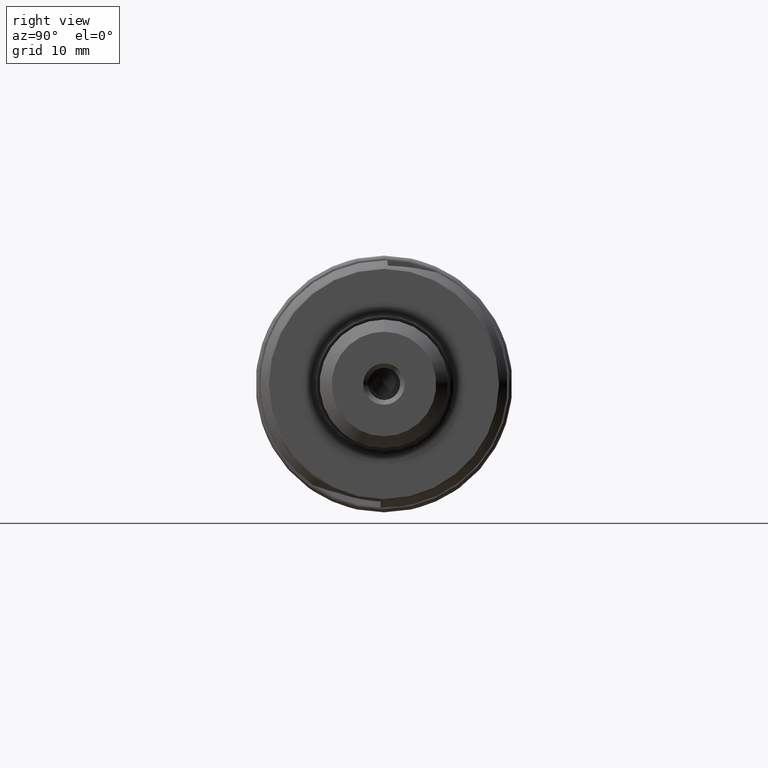
[diagram: clean part render]
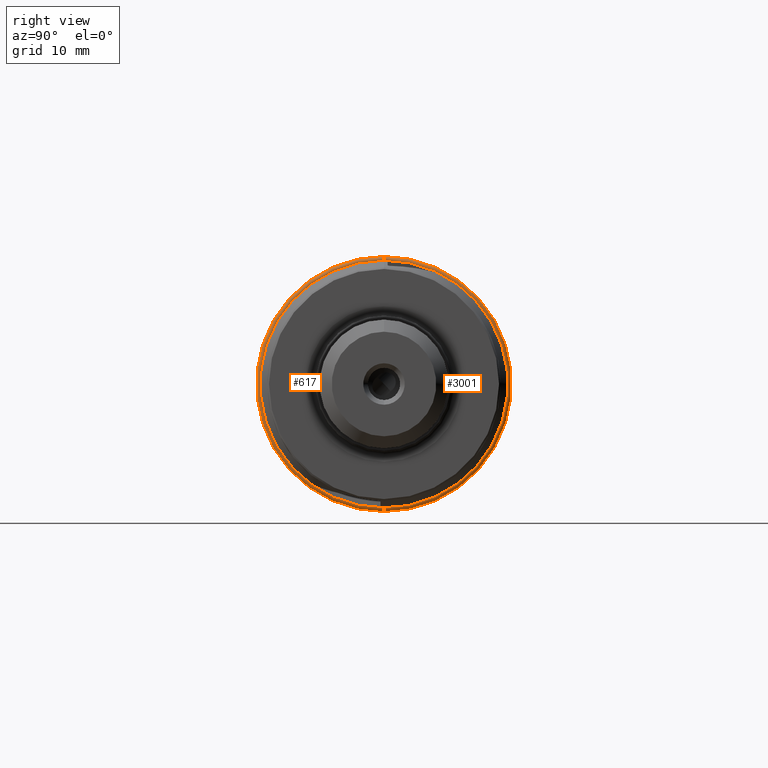
[diagram: same view with one multi-face feature highlighted, each face labeled with its STEP entity id]
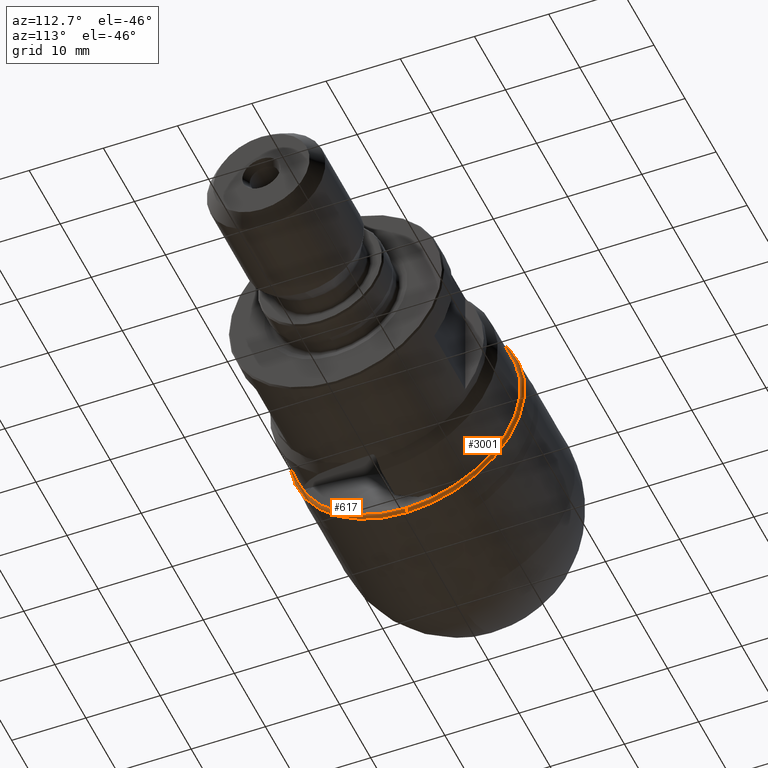
[diagram: same view with one multi-face feature highlighted, each face labeled with its STEP entity id]
A machine part, right view. The highlighted faces form ONE feature: a constant-radius fillet chain: 2 tangent blend faces with common blend radius 0.3963 mm. The faces share edges in the B-rep.
A second angle (auxiliary view) of the same feature is appended — it is thin or edge-on in the first view.
Their STEP definitions:
[1] entity #617 (Torus):
#15 = CIRCLE ( 'NONE', #485, 15.85229918174536579 ) ;
#75 = AXIS2_PLACEMENT_3D ( 'NONE', #4159, #4837, #2187 ) ;
#379 = CARTESIAN_POINT ( 'NONE',  ( 26.03898982724205169, 0.0000000000000000000, 15.85229918174536579 ) ) ;
#485 = AXIS2_PLACEMENT_3D ( 'NONE', #789, #3819, #3154 ) ;
#505 = AXIS2_PLACEMENT_3D ( 'NONE', #4294, #3584, #4318 ) ;
#546 = DIRECTION ( 'NONE',  ( -0.0000000000000000000, 1.000000000000000000, 1.224646799147353207E-16 ) ) ;
#555 = EDGE_CURVE ( 'NONE', #3402, #947, #3018, .T. ) ;
#617 = ADVANCED_FACE ( 'NONE', ( #3256 ), #4126, .T. ) ;
#618 = CARTESIAN_POINT ( 'NONE',  ( 26.02809046410044758, 1.892829962877463278E-15, -15.45612958932587944 ) ) ;
#789 = CARTESIAN_POINT ( 'NONE',  ( 26.03898982724205169, 0.0000000000000000000, 0.0000000000000000000 ) ) ;
#947 = VERTEX_POINT ( 'NONE', #3733 ) ;
#1425 = ORIENTED_EDGE ( 'NONE', *, *, #3067, .F. ) ;
#1487 = DIRECTION ( 'NONE',  ( 0.0000000000000000000, 0.0000000000000000000, -1.000000000000000000 ) ) ;
#1592 = ORIENTED_EDGE ( 'NONE', *, *, #4168, .T. ) ;
#1955 = VERTEX_POINT ( 'NONE', #379 ) ;
#2187 = DIRECTION ( 'NONE',  ( 0.0000000000000000000, 0.0000000000000000000, 1.000000000000000000 ) ) ;
#2449 = EDGE_CURVE ( 'NONE', #4093, #1955, #3582, .T. ) ;
#2600 = EDGE_LOOP ( 'NONE', ( #3604, #1592, #4545, #1425 ) ) ;
#2682 = AXIS2_PLACEMENT_3D ( 'NONE', #2976, #3026, #1487 ) ;
#2889 = CIRCLE ( 'NONE', #505, 15.39677338701797638 ) ;
#2976 = CARTESIAN_POINT ( 'NONE',  ( 26.02809046410044758, 0.0000000000000000000, 15.45612958932587944 ) ) ;
#3018 = CIRCLE ( 'NONE', #3812, 0.3963194949465845829 ) ;
#3026 = DIRECTION ( 'NONE',  ( 0.0000000000000000000, -1.000000000000000000, 0.0000000000000000000 ) ) ;
#3067 = EDGE_CURVE ( 'NONE', #947, #1955, #15, .T. ) ;
#3154 = DIRECTION ( 'NONE',  ( 0.0000000000000000000, 0.0000000000000000000, 1.000000000000000000 ) ) ;
#3256 = FACE_OUTER_BOUND ( 'NONE', #2600, .T. ) ;
#3402 = VERTEX_POINT ( 'NONE', #3607 ) ;
#3502 = CARTESIAN_POINT ( 'NONE',  ( 26.41993990370997025, 0.0000000000000000000, 15.39677338701794973 ) ) ;
#3582 = CIRCLE ( 'NONE', #2682, 0.3963194949465845829 ) ;
#3584 = DIRECTION ( 'NONE',  ( -1.000000000000000000, -0.0000000000000000000, -0.0000000000000000000 ) ) ;
#3604 = ORIENTED_EDGE ( 'NONE', *, *, #555, .F. ) ;
#3607 = CARTESIAN_POINT ( 'NONE',  ( 26.41993990370997025, 1.885560924560868396E-15, -15.39677338701794973 ) ) ;
#3733 = CARTESIAN_POINT ( 'NONE',  ( 26.03898982724205169, 1.942498187726729906E-15, -15.85229918174536579 ) ) ;
#3812 = AXIS2_PLACEMENT_3D ( 'NONE', #618, #546, #4051 ) ;
#3819 = DIRECTION ( 'NONE',  ( -1.000000000000000000, -0.0000000000000000000, -0.0000000000000000000 ) ) ;
#4051 = DIRECTION ( 'NONE',  ( 0.0000000000000000000, -1.224646799147350495E-16, 1.000000000000000000 ) ) ;
#4093 = VERTEX_POINT ( 'NONE', #3502 ) ;
#4126 = TOROIDAL_SURFACE ( 'NONE', #75, 15.45612958932587944, 0.3963194949465839168 ) ;
#4159 = CARTESIAN_POINT ( 'NONE',  ( 26.02809046410044758, 0.0000000000000000000, 0.0000000000000000000 ) ) ;
#4168 = EDGE_CURVE ( 'NONE', #3402, #4093, #2889, .T. ) ;
#4294 = CARTESIAN_POINT ( 'NONE',  ( 26.41993990370997025, 0.0000000000000000000, 0.0000000000000000000 ) ) ;
#4318 = DIRECTION ( 'NONE',  ( 0.0000000000000000000, 0.0000000000000000000, 1.000000000000000000 ) ) ;
#4545 = ORIENTED_EDGE ( 'NONE', *, *, #2449, .T. ) ;
#4837 = DIRECTION ( 'NONE',  ( -1.000000000000000000, -0.0000000000000000000, -0.0000000000000000000 ) ) ;
[2] entity #3001 (Torus):
#379 = CARTESIAN_POINT ( 'NONE',  ( 26.03898982724205169, 0.0000000000000000000, 15.85229918174536579 ) ) ;
#546 = DIRECTION ( 'NONE',  ( -0.0000000000000000000, 1.000000000000000000, 1.224646799147353207E-16 ) ) ;
#555 = EDGE_CURVE ( 'NONE', #3402, #947, #3018, .T. ) ;
#618 = CARTESIAN_POINT ( 'NONE',  ( 26.02809046410044758, 1.892829962877463278E-15, -15.45612958932587944 ) ) ;
#662 = EDGE_CURVE ( 'NONE', #1955, #947, #4761, .T. ) ;
#892 = DIRECTION ( 'NONE',  ( 0.0000000000000000000, 0.0000000000000000000, 1.000000000000000000 ) ) ;
#947 = VERTEX_POINT ( 'NONE', #3733 ) ;
#998 = AXIS2_PLACEMENT_3D ( 'NONE', #1282, #4293, #892 ) ;
#1040 = DIRECTION ( 'NONE',  ( -1.000000000000000000, -0.0000000000000000000, -0.0000000000000000000 ) ) ;
#1088 = DIRECTION ( 'NONE',  ( 0.0000000000000000000, 0.0000000000000000000, 1.000000000000000000 ) ) ;
#1100 = AXIS2_PLACEMENT_3D ( 'NONE', #4233, #1040, #2552 ) ;
#1204 = TOROIDAL_SURFACE ( 'NONE', #1843, 15.45612958932587944, 0.3963194949465839168 ) ;
#1282 = CARTESIAN_POINT ( 'NONE',  ( 26.41993990370997025, 0.0000000000000000000, 0.0000000000000000000 ) ) ;
#1412 = ORIENTED_EDGE ( 'NONE', *, *, #4765, .T. ) ;
#1485 = DIRECTION ( 'NONE',  ( -1.000000000000000000, -0.0000000000000000000, -0.0000000000000000000 ) ) ;
#1487 = DIRECTION ( 'NONE',  ( 0.0000000000000000000, 0.0000000000000000000, -1.000000000000000000 ) ) ;
#1843 = AXIS2_PLACEMENT_3D ( 'NONE', #4816, #1485, #1088 ) ;
#1955 = VERTEX_POINT ( 'NONE', #379 ) ;
#2099 = ORIENTED_EDGE ( 'NONE', *, *, #2449, .F. ) ;
#2215 = ORIENTED_EDGE ( 'NONE', *, *, #662, .F. ) ;
#2449 = EDGE_CURVE ( 'NONE', #4093, #1955, #3582, .T. ) ;
#2552 = DIRECTION ( 'NONE',  ( 0.0000000000000000000, 0.0000000000000000000, 1.000000000000000000 ) ) ;
#2682 = AXIS2_PLACEMENT_3D ( 'NONE', #2976, #3026, #1487 ) ;
#2976 = CARTESIAN_POINT ( 'NONE',  ( 26.02809046410044758, 0.0000000000000000000, 15.45612958932587944 ) ) ;
#3001 = ADVANCED_FACE ( 'NONE', ( #3301 ), #1204, .T. ) ;
#3018 = CIRCLE ( 'NONE', #3812, 0.3963194949465845829 ) ;
#3026 = DIRECTION ( 'NONE',  ( 0.0000000000000000000, -1.000000000000000000, 0.0000000000000000000 ) ) ;
#3301 = FACE_OUTER_BOUND ( 'NONE', #4858, .T. ) ;
#3402 = VERTEX_POINT ( 'NONE', #3607 ) ;
#3502 = CARTESIAN_POINT ( 'NONE',  ( 26.41993990370997025, 0.0000000000000000000, 15.39677338701794973 ) ) ;
#3582 = CIRCLE ( 'NONE', #2682, 0.3963194949465845829 ) ;
#3607 = CARTESIAN_POINT ( 'NONE',  ( 26.41993990370997025, 1.885560924560868396E-15, -15.39677338701794973 ) ) ;
#3733 = CARTESIAN_POINT ( 'NONE',  ( 26.03898982724205169, 1.942498187726729906E-15, -15.85229918174536579 ) ) ;
#3812 = AXIS2_PLACEMENT_3D ( 'NONE', #618, #546, #4051 ) ;
#3830 = ORIENTED_EDGE ( 'NONE', *, *, #555, .T. ) ;
#4016 = CIRCLE ( 'NONE', #998, 15.39677338701797638 ) ;
#4051 = DIRECTION ( 'NONE',  ( 0.0000000000000000000, -1.224646799147350495E-16, 1.000000000000000000 ) ) ;
#4093 = VERTEX_POINT ( 'NONE', #3502 ) ;
#4233 = CARTESIAN_POINT ( 'NONE',  ( 26.03898982724205169, 0.0000000000000000000, 0.0000000000000000000 ) ) ;
#4293 = DIRECTION ( 'NONE',  ( -1.000000000000000000, -0.0000000000000000000, -0.0000000000000000000 ) ) ;
#4761 = CIRCLE ( 'NONE', #1100, 15.85229918174536579 ) ;
#4765 = EDGE_CURVE ( 'NONE', #4093, #3402, #4016, .T. ) ;
#4816 = CARTESIAN_POINT ( 'NONE',  ( 26.02809046410044758, 0.0000000000000000000, 0.0000000000000000000 ) ) ;
#4858 = EDGE_LOOP ( 'NONE', ( #1412, #3830, #2215, #2099 ) ) ;